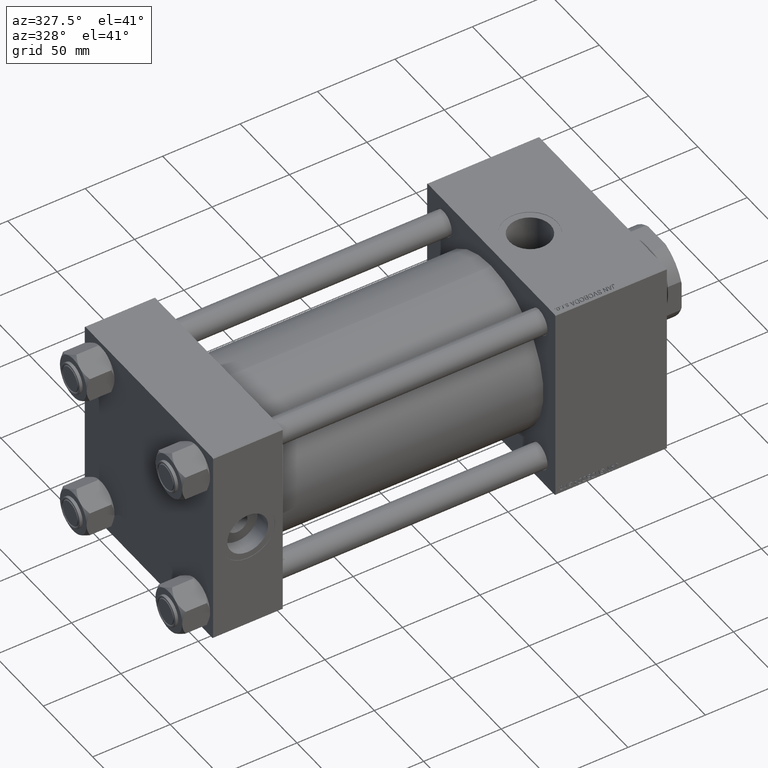
[diagram: clean part render]
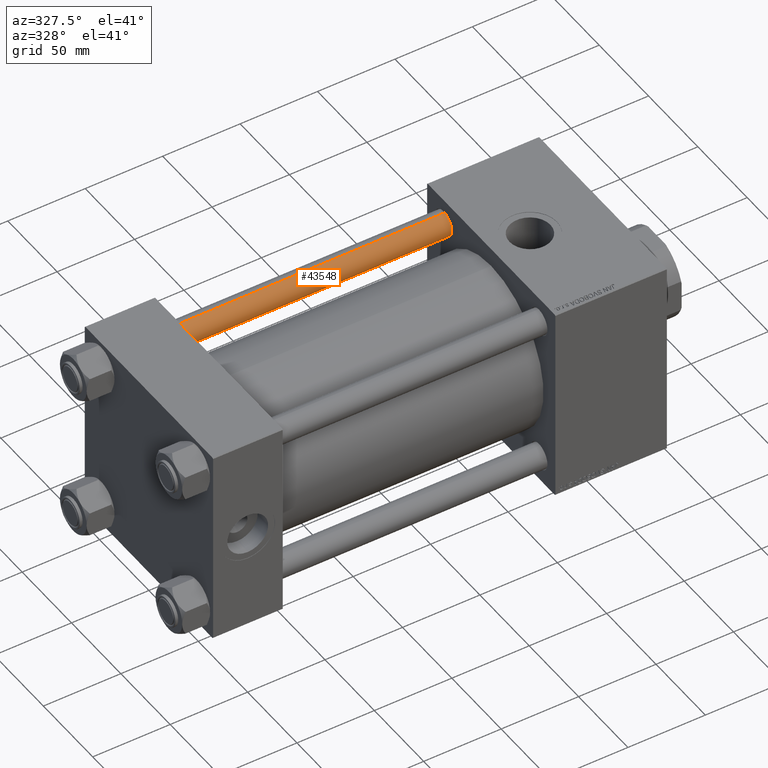
[diagram: same view with one face highlighted and labeled with its STEP entity id]
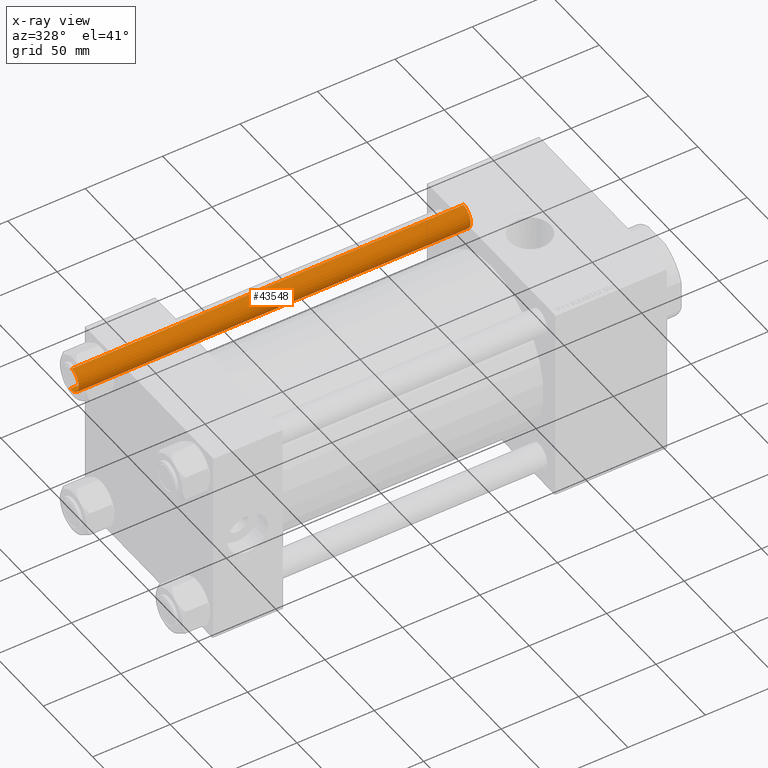
[diagram: x-ray of the same camera — body ghosted, the highlighted face saturated]
A machine part, auxiliary view. The second image highlights one B-rep face of the part: STEP entity #43548.
The next image is the same camera in x-ray: the body ghosted, the highlighted face saturated — about 0% of this face is hidden behind the body in this view.
In plain terms, the highlighted cylindrical surface (edge-blend (fillet) strip) has radius 8 mm, axis along (-1, 0, 0).
Its self-contained STEP definition (entity closure, byte-faithful):
#565 = DIRECTION ( 'NONE',  ( -0.000000000000000000, -0.000000000000000000, 1.000000000000000000 ) ) ;
#1237 = AXIS2_PLACEMENT_3D ( 'NONE', #32644, #24331, #52220 ) ;
#5110 = CARTESIAN_POINT ( 'NONE',  ( 0.000000000000000000, 0.000000000000000000, 0.5000000000000004441 ) ) ;
#6645 = LINE ( 'NONE', #32764, #22440 ) ;
#6673 = EDGE_LOOP ( 'NONE', ( #20167, #26625, #32885, #44888 ) ) ;
#9385 = VERTEX_POINT ( 'NONE', #29025 ) ;
#11491 = VECTOR ( 'NONE', #40247, 1000.000000000000000 ) ;
#12364 = LINE ( 'NONE', #40756, #11491 ) ;
#13029 = EDGE_CURVE ( 'NONE', #42491, #30800, #6645, .T. ) ;
#16867 = DIRECTION ( 'NONE',  ( 1.000000000000000000, 0.000000000000000000, 0.000000000000000000 ) ) ;
#17535 = EDGE_CURVE ( 'NONE', #9385, #25966, #12364, .T. ) ;
#18526 = CARTESIAN_POINT ( 'NONE',  ( 0.000000000000000000, 0.000000000000000000, 254.0000000000000000 ) ) ;
#20167 = ORIENTED_EDGE ( 'NONE', *, *, #13029, .F. ) ;
#20517 = EDGE_CURVE ( 'NONE', #25966, #30800, #51780, .T. ) ;
#22440 = VECTOR ( 'NONE', #49103, 1000.000000000000000 ) ;
#24331 = DIRECTION ( 'NONE',  ( 0.000000000000000000, 0.000000000000000000, -1.000000000000000000 ) ) ;
#25966 = VERTEX_POINT ( 'NONE', #34456 ) ;
#26418 = CARTESIAN_POINT ( 'NONE',  ( 8.000000000000000000, 9.797174393178825657E-16, 253.5000000000000568 ) ) ;
#26625 = ORIENTED_EDGE ( 'NONE', *, *, #52261, .T. ) ;
#29025 = CARTESIAN_POINT ( 'NONE',  ( -8.000000000000000000, 0.000000000000000000, 253.5000000000000568 ) ) ;
#30323 = DIRECTION ( 'NONE',  ( -0.000000000000000000, -0.000000000000000000, -1.000000000000000000 ) ) ;
#30800 = VERTEX_POINT ( 'NONE', #46909 ) ;
#32644 = CARTESIAN_POINT ( 'NONE',  ( 0.000000000000000000, 0.000000000000000000, 253.5000000000000568 ) ) ;
#32764 = CARTESIAN_POINT ( 'NONE',  ( 8.000000000000000000, 9.797174393178825657E-16, 254.0000000000000000 ) ) ;
#32885 = ORIENTED_EDGE ( 'NONE', *, *, #17535, .T. ) ;
#33760 = CIRCLE ( 'NONE', #1237, 8.000000000000000000 ) ;
#34456 = CARTESIAN_POINT ( 'NONE',  ( -8.000000000000000000, 0.000000000000000000, 0.5000000000000004441 ) ) ;
#34879 = DIRECTION ( 'NONE',  ( -1.000000000000000000, 0.000000000000000000, 0.000000000000000000 ) ) ;
#35540 = AXIS2_PLACEMENT_3D ( 'NONE', #5110, #565, #16867 ) ;
#39450 = AXIS2_PLACEMENT_3D ( 'NONE', #18526, #30323, #34879 ) ;
#40247 = DIRECTION ( 'NONE',  ( -0.000000000000000000, -0.000000000000000000, -1.000000000000000000 ) ) ;
#40756 = CARTESIAN_POINT ( 'NONE',  ( -8.000000000000000000, 0.000000000000000000, 254.0000000000000000 ) ) ;
#42351 = CYLINDRICAL_SURFACE ( 'NONE', #39450, 8.000000000000000000 ) ;
#42491 = VERTEX_POINT ( 'NONE', #26418 ) ;
#43548 = ADVANCED_FACE ( 'NONE', ( #50941 ), #42351, .T. ) ;
#44888 = ORIENTED_EDGE ( 'NONE', *, *, #20517, .T. ) ;
#46909 = CARTESIAN_POINT ( 'NONE',  ( 8.000000000000000000, 9.797174393178825657E-16, 0.5000000000000004441 ) ) ;
#49103 = DIRECTION ( 'NONE',  ( -0.000000000000000000, -0.000000000000000000, -1.000000000000000000 ) ) ;
#50941 = FACE_OUTER_BOUND ( 'NONE', #6673, .T. ) ;
#51780 = CIRCLE ( 'NONE', #35540, 8.000000000000000000 ) ;
#52220 = DIRECTION ( 'NONE',  ( 1.000000000000000000, 0.000000000000000000, 0.000000000000000000 ) ) ;
#52261 = EDGE_CURVE ( 'NONE', #42491, #9385, #33760, .T. ) ;